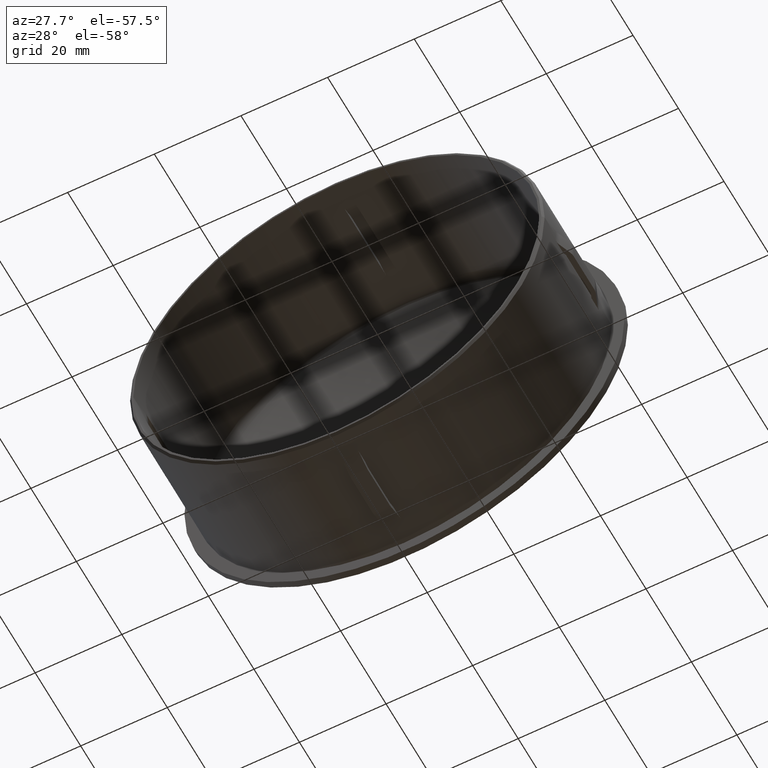
[diagram: clean part render]
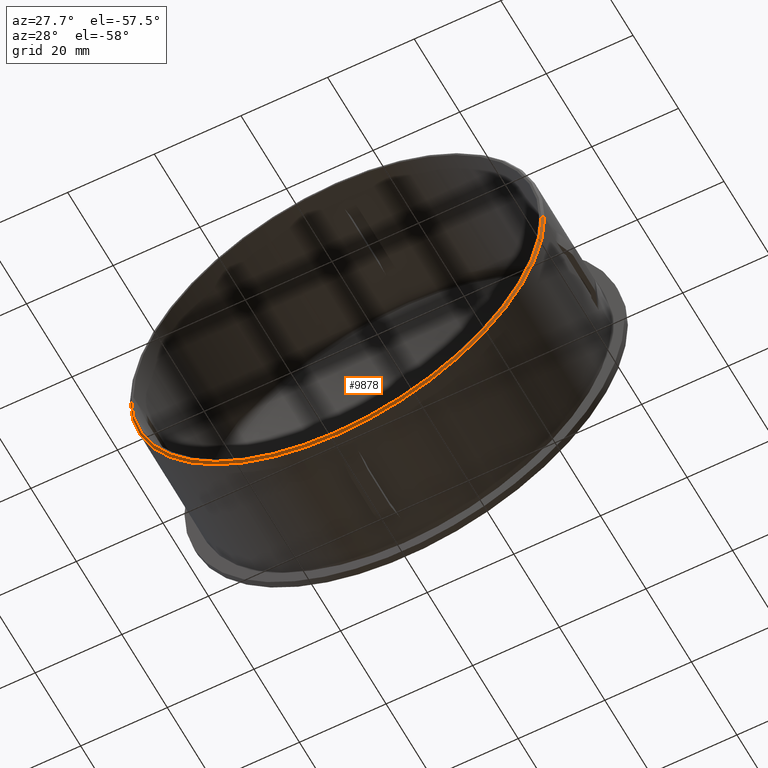
[diagram: same view with one face highlighted and labeled with its STEP entity id]
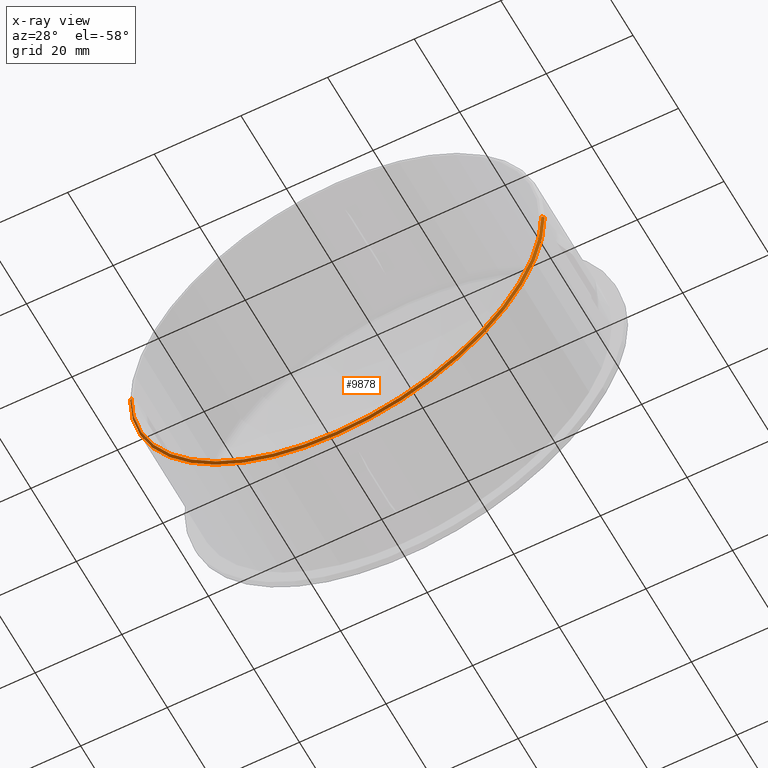
[diagram: x-ray of the same camera — body ghosted, the highlighted face saturated]
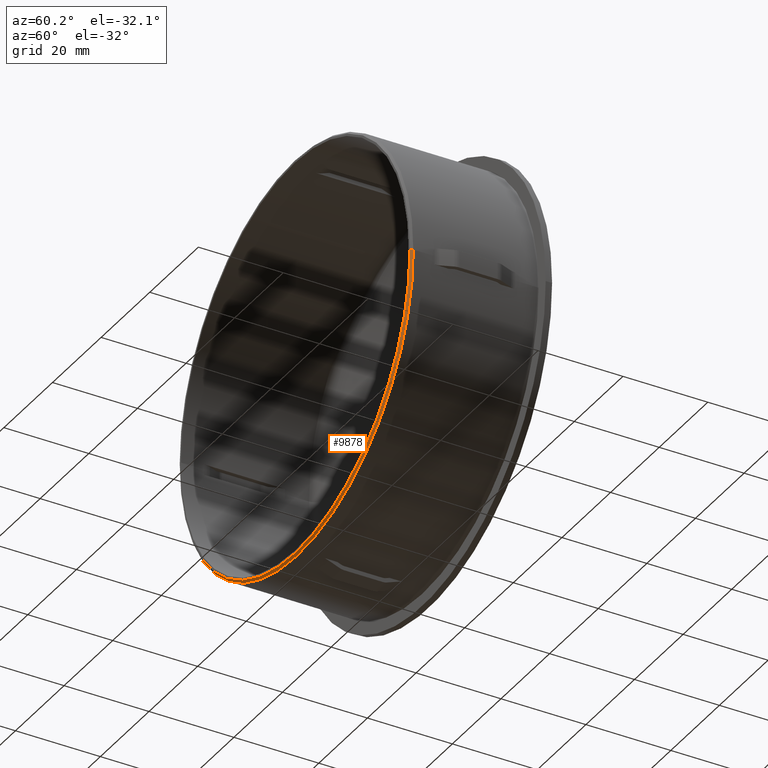
[diagram: same view with one face highlighted and labeled with its STEP entity id]
A machine part, auxiliary view. The second image highlights one B-rep face of the part: STEP entity #9878.
The next image is the same camera in x-ray: the body ghosted, the highlighted face saturated — about 0% of this face is hidden behind the body in this view.
A second angle (auxiliary view) of the same face is appended — the face is thin or edge-on in the first view.
In plain terms, the highlighted conical surface has half-angle 45 deg.
Its self-contained STEP definition (entity closure, byte-faithful):
#63 = DIRECTION ( 'NONE',  ( 0.7071067811865487900, 0.7071067811865463500, 8.659560562354994500E-017 ) ) ;
#358 = LINE ( 'NONE', #10299, #8622 ) ;
#837 = VECTOR ( 'NONE', #1632, 1000.000000000000000 ) ;
#868 = CONICAL_SURFACE ( 'NONE', #10042, 47.34999999999979500, 0.7853981633974552700 ) ;
#1632 = DIRECTION ( 'NONE',  ( -0.7071067811865561200, 0.7071067811865390200, 0.0000000000000000000 ) ) ;
#1680 = ORIENTED_EDGE ( 'NONE', *, *, #2012, .F. ) ;
#2012 = EDGE_CURVE ( 'NONE', #6701, #13829, #4592, .T. ) ;
#2809 = AXIS2_PLACEMENT_3D ( 'NONE', #14829, #3357, #5730 ) ;
#3038 = CARTESIAN_POINT ( 'NONE',  ( 2.145361241653260400E-013, 0.4999999999997645200, 0.0000000000000000000 ) ) ;
#3234 = CARTESIAN_POINT ( 'NONE',  ( -47.34999999999958200, -4.871172928718640700E-013, 0.0000000000000000000 ) ) ;
#3357 = DIRECTION ( 'NONE',  ( 5.169545160610235800E-015, -1.000000000000000000, -0.0000000000000000000 ) ) ;
#3918 = DIRECTION ( 'NONE',  ( -5.169545160610254800E-015, 1.000000000000000000, 0.0000000000000000000 ) ) ;
#4189 = DIRECTION ( 'NONE',  ( -5.169545160610254800E-015, 1.000000000000000000, 0.0000000000000000000 ) ) ;
#4270 = EDGE_CURVE ( 'NONE', #11433, #12246, #7864, .T. ) ;
#4498 = ORIENTED_EDGE ( 'NONE', *, *, #6497, .T. ) ;
#4501 = ORIENTED_EDGE ( 'NONE', *, *, #4270, .F. ) ;
#4592 = CIRCLE ( 'NONE', #2809, 47.34999999999979500 ) ;
#5730 = DIRECTION ( 'NONE',  ( 1.000000000000000000, 5.169545160610235800E-015, 0.0000000000000000000 ) ) ;
#5966 = EDGE_LOOP ( 'NONE', ( #12188, #1680, #4498, #4501 ) ) ;
#6497 = EDGE_CURVE ( 'NONE', #6701, #12246, #6932, .T. ) ;
#6701 = VERTEX_POINT ( 'NONE', #3234 ) ;
#6932 = LINE ( 'NONE', #9575, #837 ) ;
#7267 = CARTESIAN_POINT ( 'NONE',  ( 2.171208967456312000E-013, -2.428612866367529900E-013, 0.0000000000000000000 ) ) ;
#7864 = CIRCLE ( 'NONE', #13837, 47.84999999999981000 ) ;
#8085 = CARTESIAN_POINT ( 'NONE',  ( -47.84999999999959600, 0.4999999999995171100, 5.859934933920061700E-015 ) ) ;
#8479 = DIRECTION ( 'NONE',  ( -1.000000000000000000, -5.169545160610254000E-015, 0.0000000000000000000 ) ) ;
#8622 = VECTOR ( 'NONE', #63, 1000.000000000000000 ) ;
#9575 = CARTESIAN_POINT ( 'NONE',  ( -47.34999999999958200, -4.876392499916474200E-013, 0.0000000000000000000 ) ) ;
#9878 = ADVANCED_FACE ( 'NONE', ( #11214 ), #868, .T. ) ;
#9881 = CARTESIAN_POINT ( 'NONE',  ( 47.35000000000000900, 2.438633837923079600E-015, 5.829318763941377100E-015 ) ) ;
#10042 = AXIS2_PLACEMENT_3D ( 'NONE', #7267, #3918, #8479 ) ;
#10299 = CARTESIAN_POINT ( 'NONE',  ( 47.35000000000000900, 1.916676718141513500E-015, 5.798702593962692500E-015 ) ) ;
#10982 = CARTESIAN_POINT ( 'NONE',  ( 47.85000000000002300, 0.5000000000000119900, 0.0000000000000000000 ) ) ;
#11214 = FACE_OUTER_BOUND ( 'NONE', #5966, .T. ) ;
#11433 = VERTEX_POINT ( 'NONE', #10982 ) ;
#12162 = DIRECTION ( 'NONE',  ( 1.000000000000000000, 5.170636066064641800E-015, 0.0000000000000000000 ) ) ;
#12188 = ORIENTED_EDGE ( 'NONE', *, *, #14582, .F. ) ;
#12246 = VERTEX_POINT ( 'NONE', #8085 ) ;
#13829 = VERTEX_POINT ( 'NONE', #9881 ) ;
#13837 = AXIS2_PLACEMENT_3D ( 'NONE', #3038, #4189, #12162 ) ;
#14582 = EDGE_CURVE ( 'NONE', #13829, #11433, #358, .T. ) ;
#14829 = CARTESIAN_POINT ( 'NONE',  ( 2.171208967456311800E-013, -2.423393295169705600E-013, 0.0000000000000000000 ) ) ;